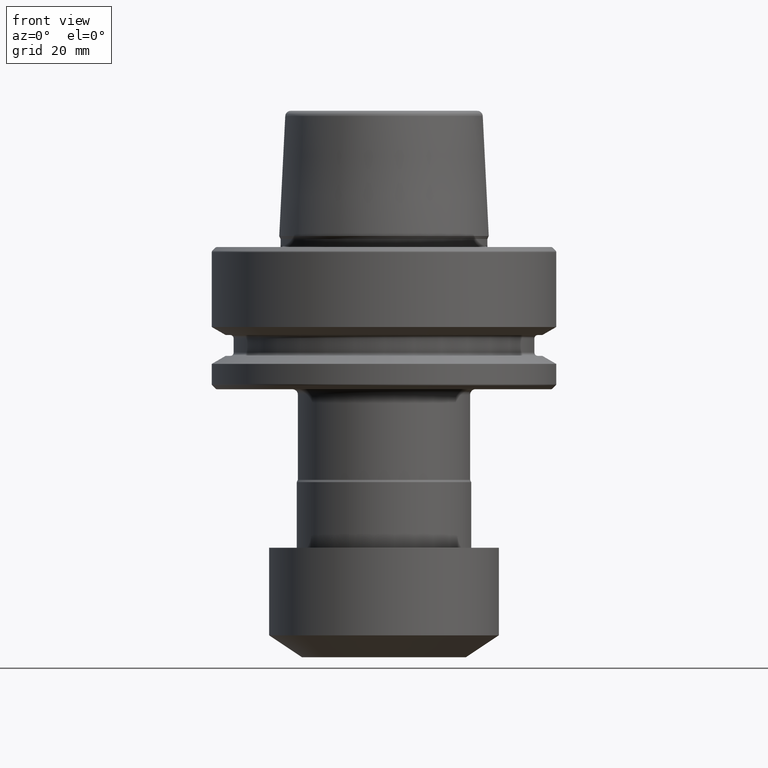
[diagram: clean part render]
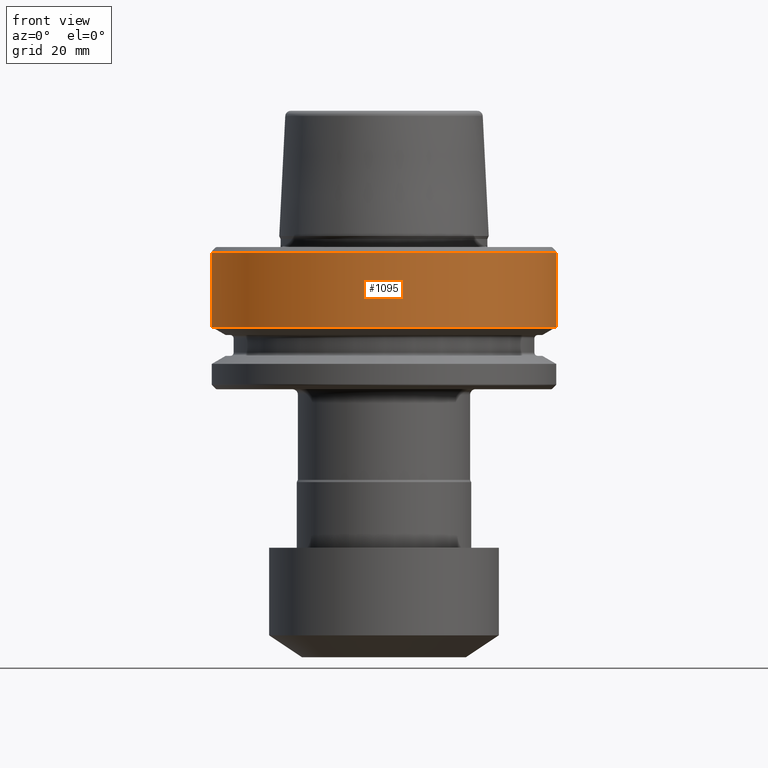
[diagram: same view with one face highlighted and labeled with its STEP entity id]
A machine part, front view. The second image highlights one B-rep face of the part: STEP entity #1095.
In plain terms, the highlighted cylindrical surface (partial cylindrical patch) has radius 31.5 mm, axis along (-0, -0, 1).
Its self-contained STEP definition (entity closure, byte-faithful):
#7 = AXIS2_PLACEMENT_3D ( 'NONE', #1499, #369, #623 ) ;
#52 = EDGE_CURVE ( 'NONE', #712, #1254, #1393, .T. ) ;
#163 = FACE_OUTER_BOUND ( 'NONE', #1363, .T. ) ;
#175 = ORIENTED_EDGE ( 'NONE', *, *, #813, .T. ) ;
#198 = VECTOR ( 'NONE', #907, 1000.000000000000000 ) ;
#254 = CARTESIAN_POINT ( 'NONE',  ( -31.50000000000000000, 3.857637417314162700E-015, -5.965685424949233700 ) ) ;
#307 = VERTEX_POINT ( 'NONE', #573 ) ;
#369 = DIRECTION ( 'NONE',  ( -0.0000000000000000000, -0.0000000000000000000, 1.000000000000000000 ) ) ;
#406 = CARTESIAN_POINT ( 'NONE',  ( 31.50000000000000000, 0.0000000000000000000, -23.00000000000001400 ) ) ;
#468 = VECTOR ( 'NONE', #952, 1000.000000000000000 ) ;
#547 = EDGE_CURVE ( 'NONE', #1079, #1254, #701, .T. ) ;
#573 = CARTESIAN_POINT ( 'NONE',  ( -31.50000000000000000, 3.857637417314162700E-015, -19.62250092524069300 ) ) ;
#614 = CARTESIAN_POINT ( 'NONE',  ( 31.50000000000000000, 0.0000000000000000000, -19.62250092524069300 ) ) ;
#619 = LINE ( 'NONE', #776, #198 ) ;
#623 = DIRECTION ( 'NONE',  ( 1.000000000000000000, 0.0000000000000000000, 0.0000000000000000000 ) ) ;
#701 = LINE ( 'NONE', #406, #468 ) ;
#703 = DIRECTION ( 'NONE',  ( -0.0000000000000000000, -0.0000000000000000000, 1.000000000000000000 ) ) ;
#712 = VERTEX_POINT ( 'NONE', #254 ) ;
#776 = CARTESIAN_POINT ( 'NONE',  ( -31.50000000000000000, 3.857637417314162700E-015, -23.00000000000001400 ) ) ;
#813 = EDGE_CURVE ( 'NONE', #307, #1079, #1003, .T. ) ;
#845 = CARTESIAN_POINT ( 'NONE',  ( 0.0000000000000000000, 0.0000000000000000000, -19.62250092524069300 ) ) ;
#872 = DIRECTION ( 'NONE',  ( 1.000000000000000000, 0.0000000000000000000, 0.0000000000000000000 ) ) ;
#894 = AXIS2_PLACEMENT_3D ( 'NONE', #1010, #703, #872 ) ;
#907 = DIRECTION ( 'NONE',  ( -0.0000000000000000000, -0.0000000000000000000, 1.000000000000000000 ) ) ;
#908 = EDGE_CURVE ( 'NONE', #307, #712, #619, .T. ) ;
#952 = DIRECTION ( 'NONE',  ( -0.0000000000000000000, -0.0000000000000000000, 1.000000000000000000 ) ) ;
#1003 = CIRCLE ( 'NONE', #1322, 31.50000000000000000 ) ;
#1010 = CARTESIAN_POINT ( 'NONE',  ( 0.0000000000000000000, 0.0000000000000000000, -23.00000000000001400 ) ) ;
#1013 = DIRECTION ( 'NONE',  ( -0.0000000000000000000, -0.0000000000000000000, 1.000000000000000000 ) ) ;
#1048 = ORIENTED_EDGE ( 'NONE', *, *, #908, .F. ) ;
#1079 = VERTEX_POINT ( 'NONE', #614 ) ;
#1095 = ADVANCED_FACE ( 'NONE', ( #163 ), #1329, .T. ) ;
#1190 = DIRECTION ( 'NONE',  ( 1.000000000000000000, 0.0000000000000000000, 0.0000000000000000000 ) ) ;
#1254 = VERTEX_POINT ( 'NONE', #1272 ) ;
#1272 = CARTESIAN_POINT ( 'NONE',  ( 31.50000000000000000, 0.0000000000000000000, -5.965685424949233700 ) ) ;
#1322 = AXIS2_PLACEMENT_3D ( 'NONE', #845, #1013, #1190 ) ;
#1329 = CYLINDRICAL_SURFACE ( 'NONE', #894, 31.50000000000000000 ) ;
#1363 = EDGE_LOOP ( 'NONE', ( #1048, #175, #1453, #1384 ) ) ;
#1384 = ORIENTED_EDGE ( 'NONE', *, *, #52, .F. ) ;
#1393 = CIRCLE ( 'NONE', #7, 31.50000000000000000 ) ;
#1453 = ORIENTED_EDGE ( 'NONE', *, *, #547, .T. ) ;
#1499 = CARTESIAN_POINT ( 'NONE',  ( 0.0000000000000000000, 0.0000000000000000000, -5.965685424949233700 ) ) ;